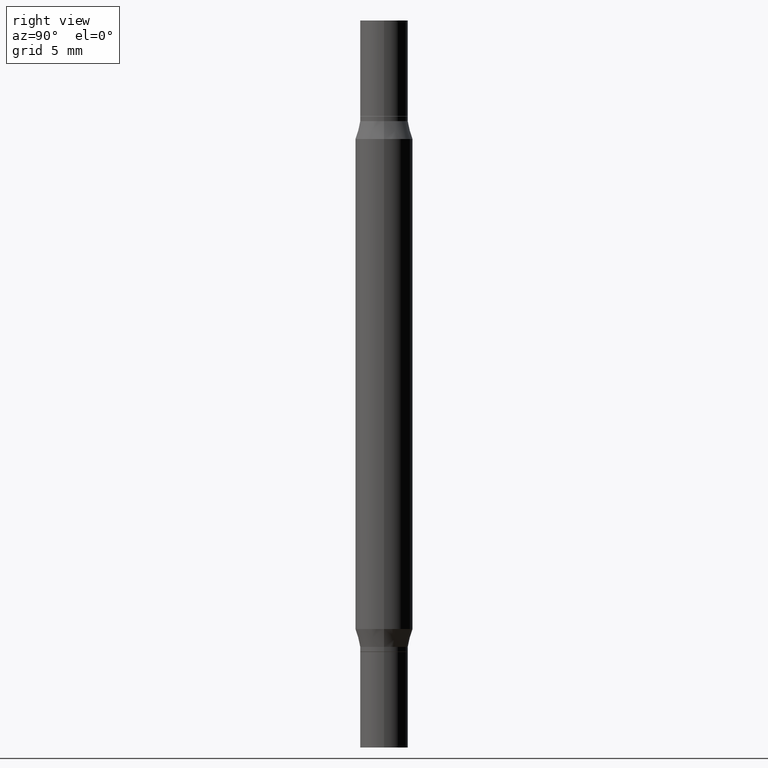
[diagram: clean part render]
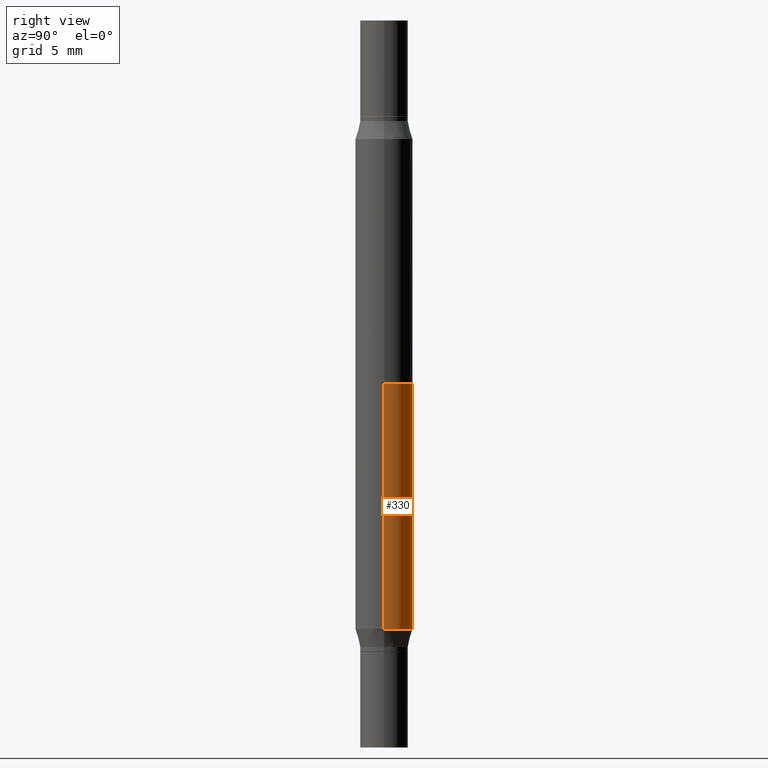
[diagram: same view with one face highlighted and labeled with its STEP entity id]
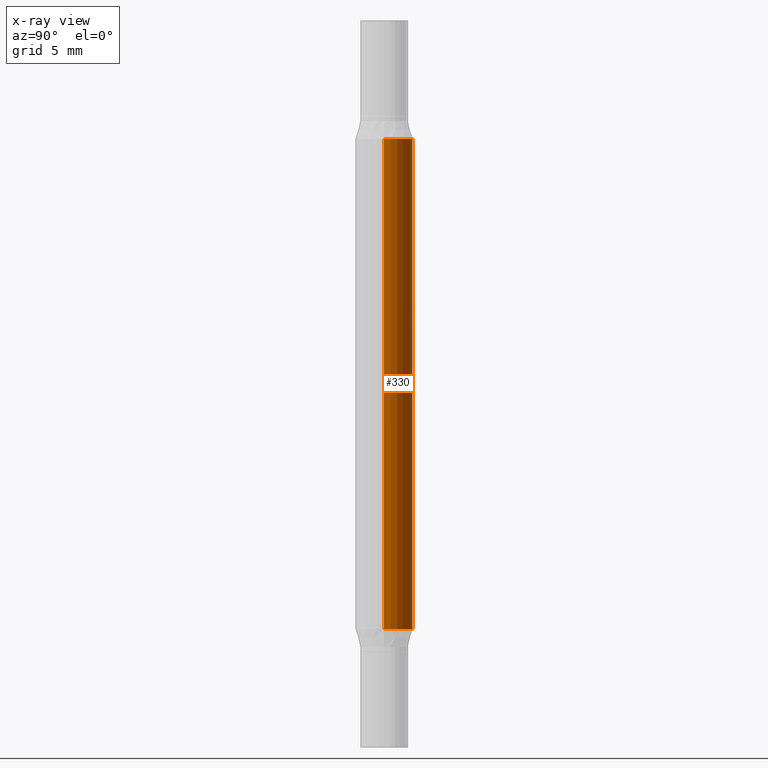
[diagram: x-ray of the same camera — body ghosted, the highlighted face saturated]
A machine part, right view. The second image highlights one B-rep face of the part: STEP entity #330.
The next image is the same camera in x-ray: the body ghosted, the highlighted face saturated — about 0% of this face is hidden behind the body in this view.
In plain terms, the highlighted cylindrical surface (edge-blend (fillet) strip) has radius 1.4999 mm, axis along (-0, -0, -1).
Its self-contained STEP definition (entity closure, byte-faithful):
#10 = DIRECTION ( 'NONE',  ( 1.000000000000000000, -6.982962677686273021E-15, 0.000000000000000000 ) ) ;
#19 = ORIENTED_EDGE ( 'NONE', *, *, #641, .T. ) ;
#75 = VERTEX_POINT ( 'NONE', #915 ) ;
#122 = AXIS2_PLACEMENT_3D ( 'NONE', #208, #127, #726 ) ;
#127 = DIRECTION ( 'NONE',  ( -2.445468806185136597E-29, 3.491481338843145583E-15, 1.000000000000000000 ) ) ;
#140 = CARTESIAN_POINT ( 'NONE',  ( -0.05904999999999999832, -4.818735010038875060E-15, -1.496099999999999985 ) ) ;
#208 = CARTESIAN_POINT ( 'NONE',  ( 3.062556691798133272E-29, -4.372519294262821742E-15, -1.252339299545446316 ) ) ;
#211 = DIRECTION ( 'NONE',  ( -2.445468806185136877E-29, -3.491805094961123683E-15, -1.000000000000000000 ) ) ;
#214 = EDGE_CURVE ( 'NONE', #531, #75, #586, .T. ) ;
#224 = DIRECTION ( 'NONE',  ( -2.445468806185136877E-29, -3.491805094961123683E-15, -1.000000000000000000 ) ) ;
#228 = FACE_OUTER_BOUND ( 'NONE', #697, .T. ) ;
#255 = CARTESIAN_POINT ( 'NONE',  ( 3.062556691798133272E-29, -8.509226700344482173E-16, -0.2437607004545535860 ) ) ;
#282 = CARTESIAN_POINT ( 'NONE',  ( 0.05904999999999999832, -5.636191362924657961E-15, -1.496099999999999985 ) ) ;
#288 = EDGE_CURVE ( 'NONE', #522, #644, #654, .T. ) ;
#330 = ADVANCED_FACE ( 'NONE', ( #228 ), #922, .T. ) ;
#496 = ORIENTED_EDGE ( 'NONE', *, *, #530, .F. ) ;
#497 = CARTESIAN_POINT ( 'NONE',  ( 0.05904999999999999832, -1.263266616151821658E-15, -0.2437607004545535860 ) ) ;
#510 = CARTESIAN_POINT ( 'NONE',  ( 0.05904999999999999832, -4.784863240380196662E-15, -1.252339299545446316 ) ) ;
#522 = VERTEX_POINT ( 'NONE', #497 ) ;
#530 = EDGE_CURVE ( 'NONE', #522, #531, #919, .T. ) ;
#531 = VERTEX_POINT ( 'NONE', #935 ) ;
#536 = CARTESIAN_POINT ( 'NONE',  ( 0.000000000000000000, -5.223847416807283040E-15, -1.496099999999999985 ) ) ;
#558 = DIRECTION ( 'NONE',  ( 1.000000000000000000, -6.982962677686265133E-15, 0.000000000000000000 ) ) ;
#586 = LINE ( 'NONE', #140, #803 ) ;
#641 = EDGE_CURVE ( 'NONE', #644, #75, #964, .T. ) ;
#644 = VERTEX_POINT ( 'NONE', #510 ) ;
#654 = LINE ( 'NONE', #282, #706 ) ;
#690 = ORIENTED_EDGE ( 'NONE', *, *, #214, .F. ) ;
#697 = EDGE_LOOP ( 'NONE', ( #690, #496, #756, #19 ) ) ;
#706 = VECTOR ( 'NONE', #211, 39.37007874015748143 ) ;
#726 = DIRECTION ( 'NONE',  ( 1.000000000000000000, -6.982962677686273021E-15, 0.000000000000000000 ) ) ;
#756 = ORIENTED_EDGE ( 'NONE', *, *, #288, .T. ) ;
#768 = AXIS2_PLACEMENT_3D ( 'NONE', #255, #796, #558 ) ;
#796 = DIRECTION ( 'NONE',  ( 2.445468806185136597E-29, 3.491805094961124077E-15, 1.000000000000000000 ) ) ;
#803 = VECTOR ( 'NONE', #224, 39.37007874015748143 ) ;
#846 = DIRECTION ( 'NONE',  ( -2.445468806185136597E-29, -3.491805094961124077E-15, -1.000000000000000000 ) ) ;
#915 = CARTESIAN_POINT ( 'NONE',  ( -0.05904999999999999832, -2.206690208753205666E-15, -1.252339299545446316 ) ) ;
#919 = CIRCLE ( 'NONE', #768, 0.05904999999999999832 ) ;
#922 = CYLINDRICAL_SURFACE ( 'NONE', #974, 0.05904999999999999832 ) ;
#935 = CARTESIAN_POINT ( 'NONE',  ( -0.05904999999999999832, -4.458102632660388560E-16, -0.2437607004545535860 ) ) ;
#964 = CIRCLE ( 'NONE', #122, 0.05904999999999999832 ) ;
#974 = AXIS2_PLACEMENT_3D ( 'NONE', #536, #846, #10 ) ;